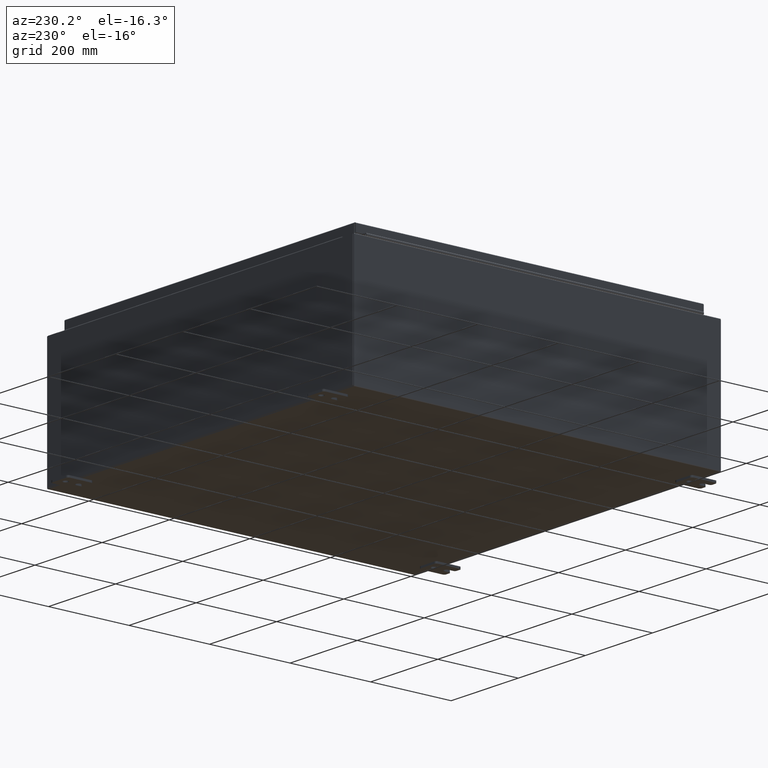
[diagram: clean part render]
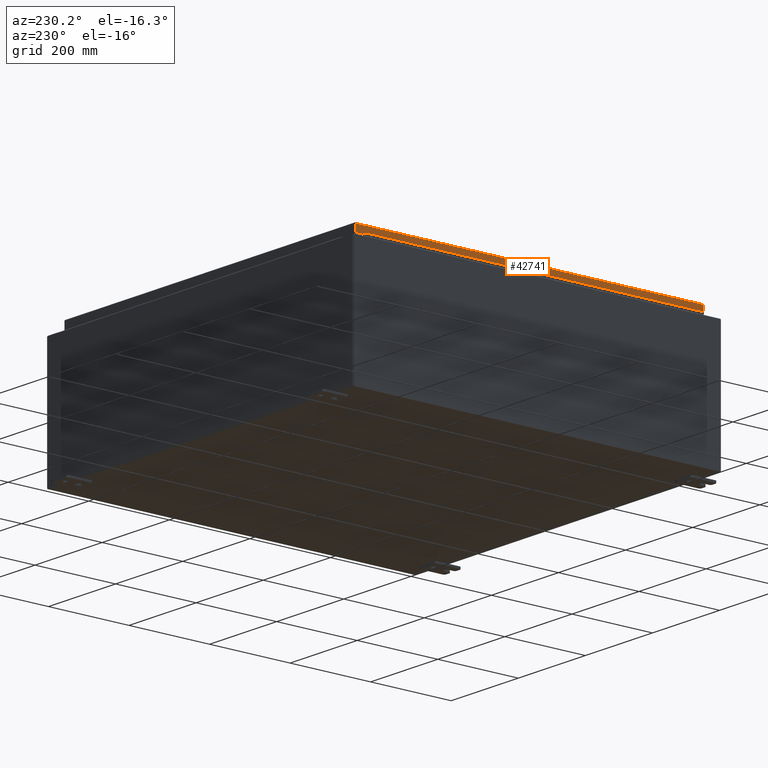
[diagram: same view with one face highlighted and labeled with its STEP entity id]
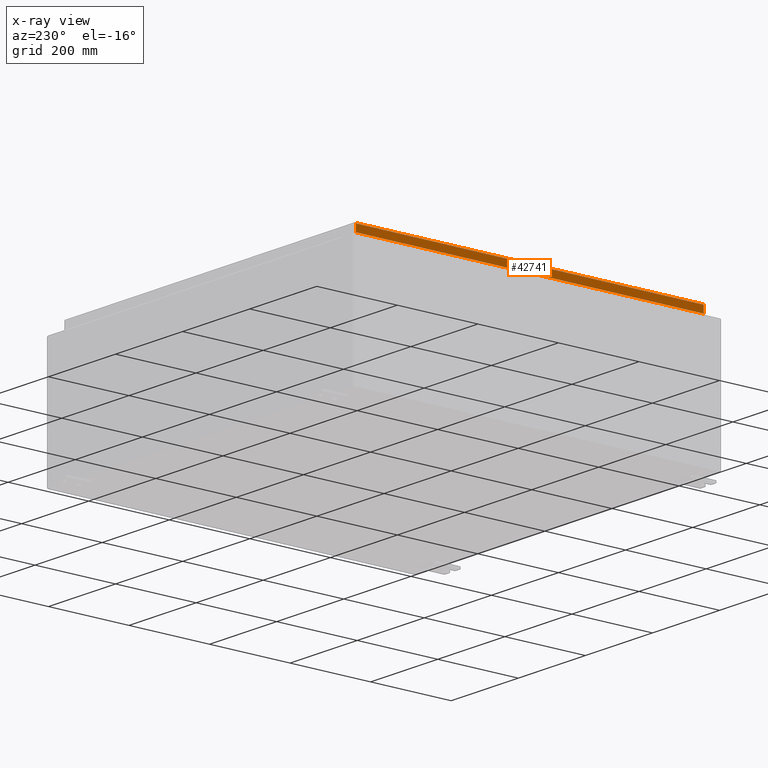
[diagram: x-ray of the same camera — body ghosted, the highlighted face saturated]
A machine part, auxiliary view. The second image highlights one B-rep face of the part: STEP entity #42741.
The next image is the same camera in x-ray: the body ghosted, the highlighted face saturated — about 0% of this face is hidden behind the body in this view.
In plain terms, the highlighted planar face has unit normal (1, -0, -0).
Its self-contained STEP definition (entity closure, byte-faithful):
#1327 = CARTESIAN_POINT ( 'NONE',  ( -17.07799999999999600, 17.00515786437628000, -0.7949999999999954900 ) ) ;
#3505 = ORIENTED_EDGE ( 'NONE', *, *, #38981, .F. ) ;
#4538 = DIRECTION ( 'NONE',  ( -3.034122441942816100E-015, 6.982962677686265900E-015, -1.000000000000000000 ) ) ;
#14389 = EDGE_CURVE ( 'NONE', #57834, #94595, #26736, .T. ) ;
#15566 = VECTOR ( 'NONE', #71362, 39.37007874015748100 ) ;
#15947 = DIRECTION ( 'NONE',  ( -3.034122441942816500E-015, 0.0000000000000000000, -1.000000000000000000 ) ) ;
#17445 = DIRECTION ( 'NONE',  ( 1.278506139541014700E-016, 1.000000000000000000, 1.238552822680358400E-016 ) ) ;
#18541 = LINE ( 'NONE', #53164, #15566 ) ;
#26736 = LINE ( 'NONE', #81258, #123573 ) ;
#27171 = CARTESIAN_POINT ( 'NONE',  ( -17.07800000000000300, -17.09399999999999800, -0.7949999999999997100 ) ) ;
#36118 = EDGE_CURVE ( 'NONE', #114536, #57834, #84533, .T. ) ;
#37250 = VECTOR ( 'NONE', #17445, 39.37007874015748100 ) ;
#38981 = EDGE_CURVE ( 'NONE', #94595, #113943, #88622, .T. ) ;
#42741 = ADVANCED_FACE ( 'NONE', ( #109331 ), #44721, .F. ) ;
#44721 = PLANE ( 'NONE',  #59860 ) ;
#44956 = CARTESIAN_POINT ( 'NONE',  ( -17.07800000000000300, -17.00515786437626200, -0.7949999999999996000 ) ) ;
#45166 = CARTESIAN_POINT ( 'NONE',  ( -17.07799999999999900, -17.00515786437626500, -0.08770000000000224800 ) ) ;
#47386 = ORIENTED_EDGE ( 'NONE', *, *, #114728, .T. ) ;
#53164 = CARTESIAN_POINT ( 'NONE',  ( -17.07799999999999600, 17.00515786437627600, 1.708239394146136100E-013 ) ) ;
#57834 = VERTEX_POINT ( 'NONE', #45166 ) ;
#59860 = AXIS2_PLACEMENT_3D ( 'NONE', #92854, #73870, #15947 ) ;
#60763 = CARTESIAN_POINT ( 'NONE',  ( -17.07799999999999600, 17.00515786437627600, -0.08770000000000439900 ) ) ;
#71362 = DIRECTION ( 'NONE',  ( -3.034122441942816100E-015, 6.982962677686265900E-015, -1.000000000000000000 ) ) ;
#73870 = DIRECTION ( 'NONE',  ( 1.000000000000000000, -1.278506139541011000E-016, -3.034122441942816500E-015 ) ) ;
#80384 = CARTESIAN_POINT ( 'NONE',  ( -17.07799999999999900, -17.09399999999999800, -0.08770000000000004200 ) ) ;
#81258 = CARTESIAN_POINT ( 'NONE',  ( -17.07799999999999900, -17.00515786437626900, -0.07469999999999976700 ) ) ;
#84533 = LINE ( 'NONE', #80384, #110286 ) ;
#88622 = LINE ( 'NONE', #27171, #37250 ) ;
#89009 = EDGE_LOOP ( 'NONE', ( #93925, #47386, #3505, #118644 ) ) ;
#90048 = DIRECTION ( 'NONE',  ( -1.278506139541007100E-016, -1.000000000000000000, 1.278506139541014700E-016 ) ) ;
#92854 = CARTESIAN_POINT ( 'NONE',  ( -17.07799999999999600, 2.183432785108138600E-015, 5.207755671951099000E-014 ) ) ;
#93925 = ORIENTED_EDGE ( 'NONE', *, *, #36118, .F. ) ;
#94595 = VERTEX_POINT ( 'NONE', #44956 ) ;
#109331 = FACE_OUTER_BOUND ( 'NONE', #89009, .T. ) ;
#110286 = VECTOR ( 'NONE', #90048, 39.37007874015748100 ) ;
#113943 = VERTEX_POINT ( 'NONE', #1327 ) ;
#114536 = VERTEX_POINT ( 'NONE', #60763 ) ;
#114728 = EDGE_CURVE ( 'NONE', #114536, #113943, #18541, .T. ) ;
#118644 = ORIENTED_EDGE ( 'NONE', *, *, #14389, .F. ) ;
#123573 = VECTOR ( 'NONE', #4538, 39.37007874015748100 ) ;